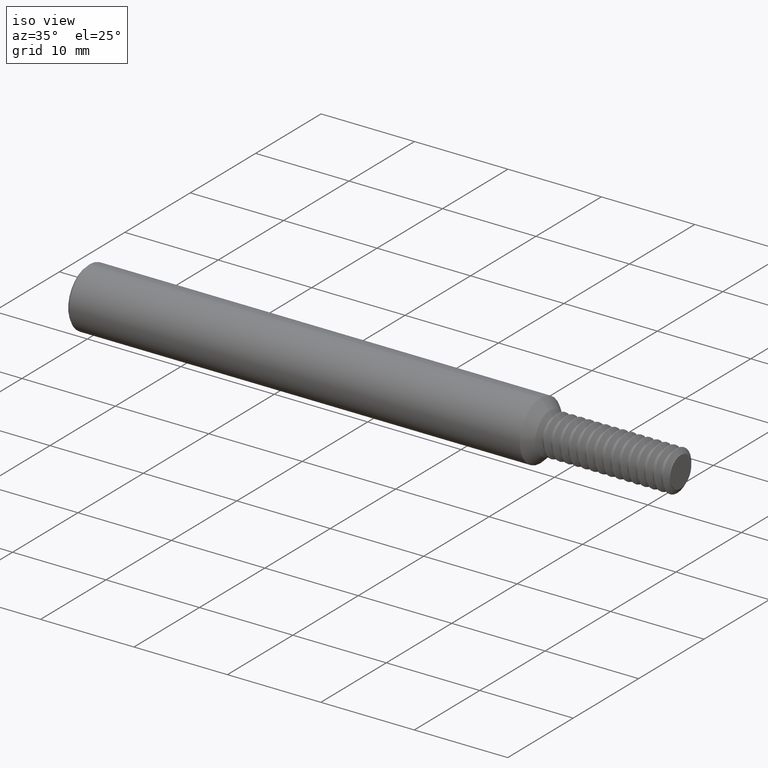
[diagram: clean part render]
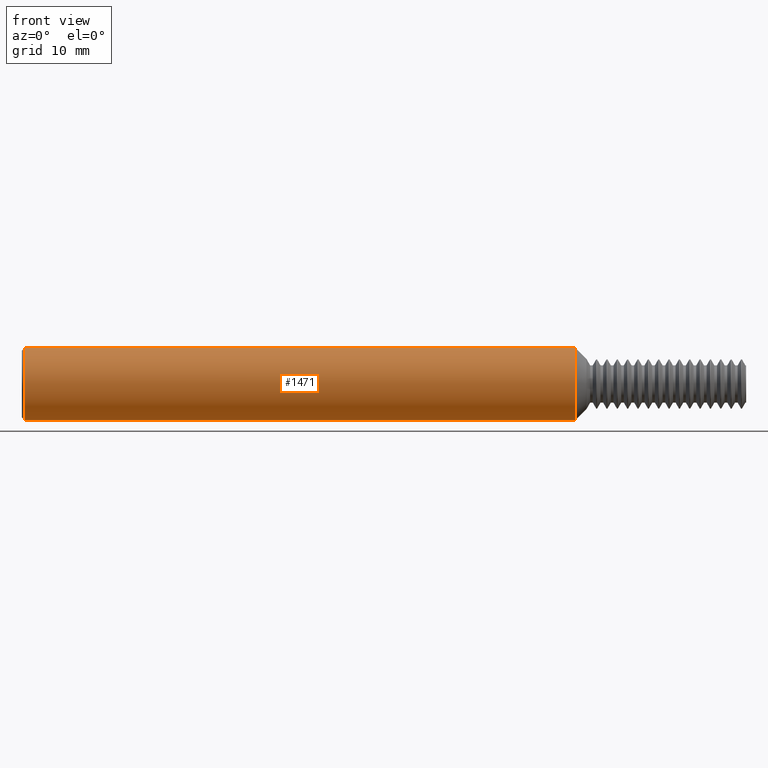
[diagram: tour spotlight — one face highlighted and labeled with its STEP entity id]
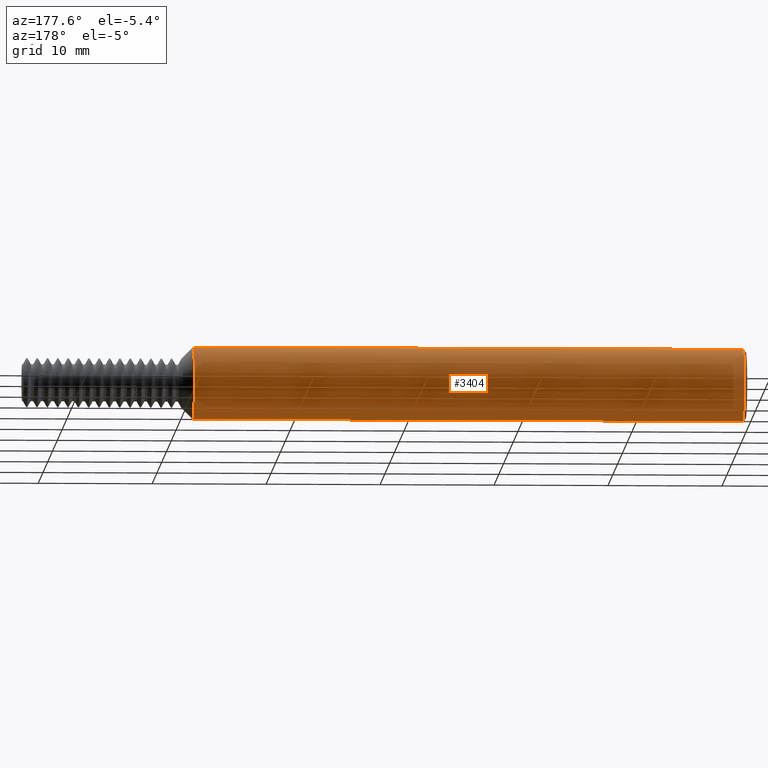
[diagram: tour spotlight — one face highlighted and labeled with its STEP entity id]
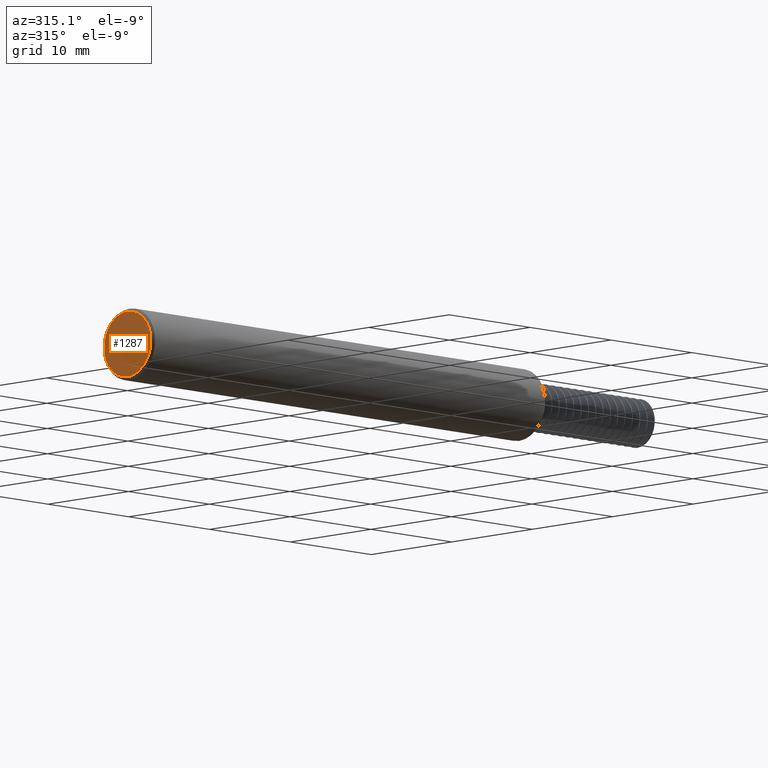
[diagram: tour spotlight — one face highlighted and labeled with its STEP entity id]
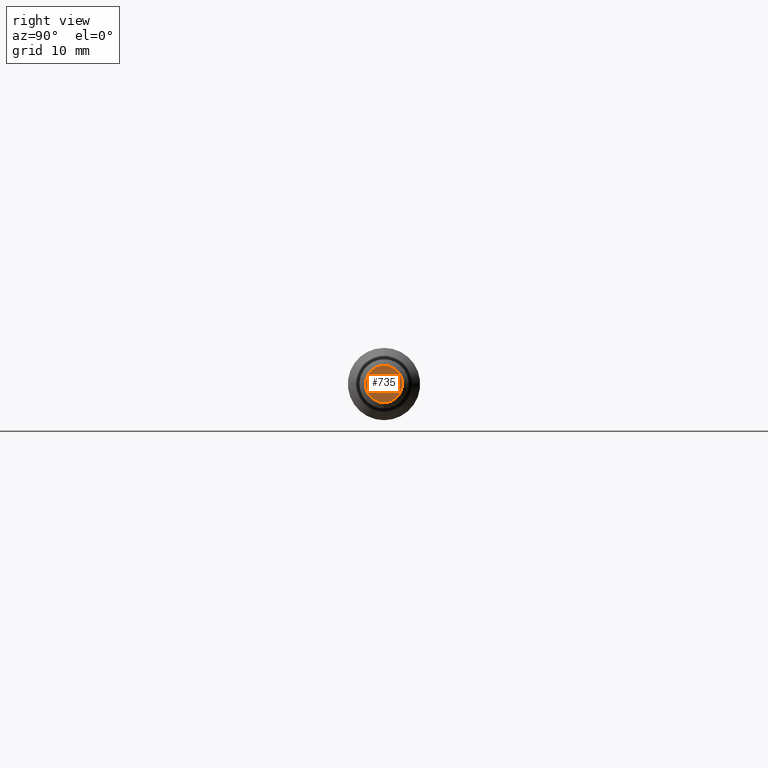
[diagram: tour spotlight — one face highlighted and labeled with its STEP entity id]
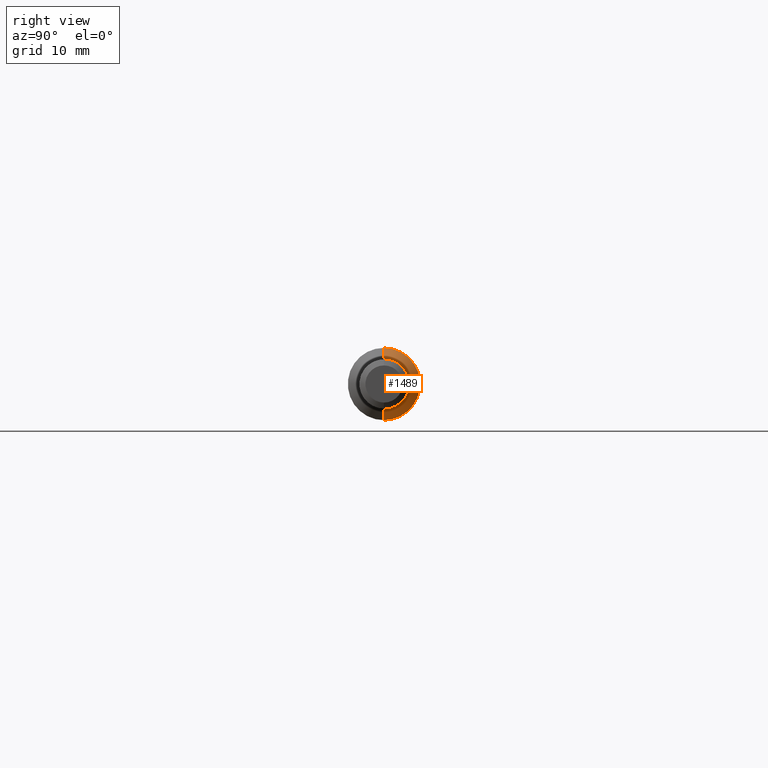
[diagram: tour spotlight — one face highlighted and labeled with its STEP entity id]
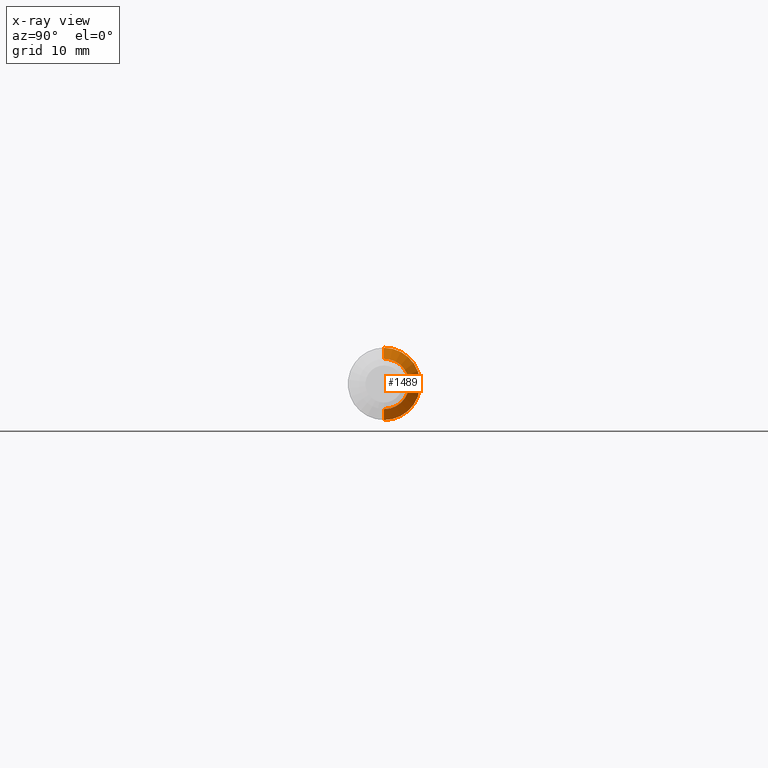
[diagram: x-ray of the same camera — body ghosted, this tour face saturated]
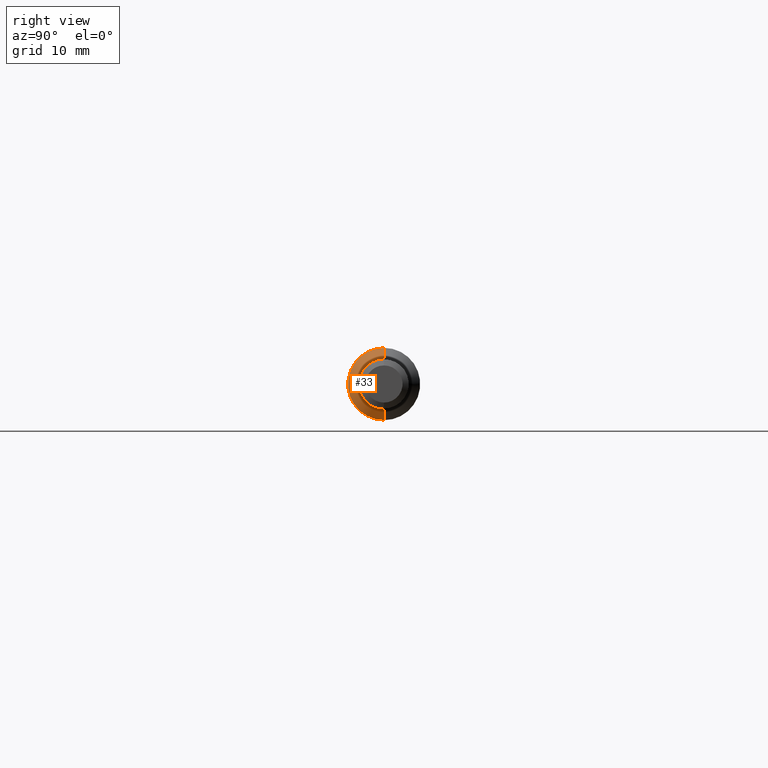
[diagram: tour spotlight — one face highlighted and labeled with its STEP entity id]
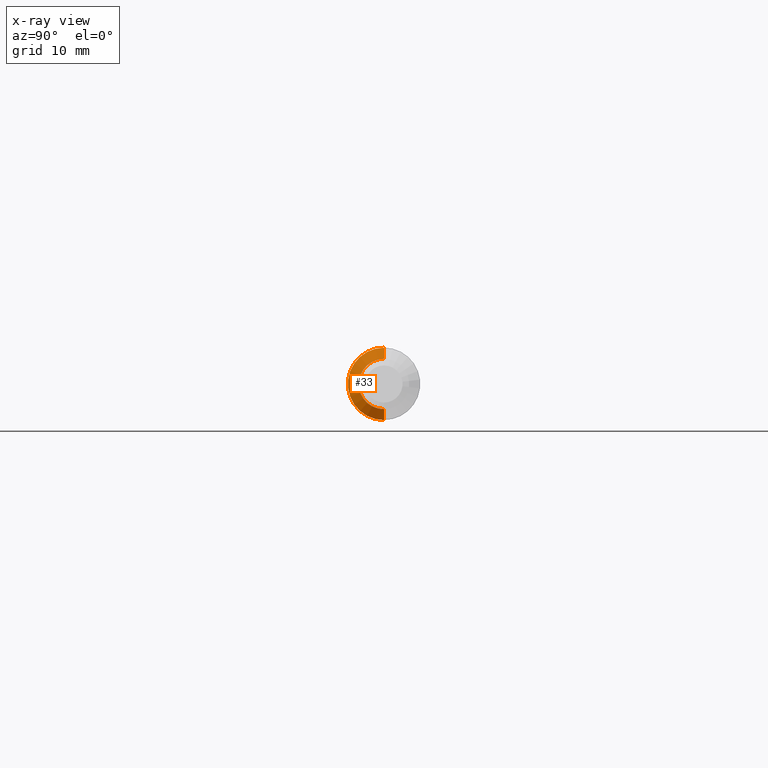
[diagram: x-ray of the same camera — body ghosted, this tour face saturated]
A machine part: a face-by-face anatomy tour. The part has 134 B-rep faces; the first image is the clean iso view, then the 6 largest visible faces are spotlighted one at a time (largest first), each with its STEP entity span.

Face 1 — front view, entity #1471. In plain terms, the highlighted cylindrical surface (edge-blend (fillet) strip) has radius 3.1712 mm, axis along (-1, -0, -0).
Definition (entity closure, byte-faithful):
#145 = VERTEX_POINT ( 'NONE', #1577 ) ;
#215 = LINE ( 'NONE', #2624, #1109 ) ;
#255 = CARTESIAN_POINT ( 'NONE',  ( 1.910150000000000015, 0.000000000000000000, 0.000000000000000000 ) ) ;
#290 = EDGE_CURVE ( 'NONE', #3239, #1060, #2660, .T. ) ;
#355 = FACE_OUTER_BOUND ( 'NONE', #1715, .T. ) ;
#362 = AXIS2_PLACEMENT_3D ( 'NONE', #255, #2616, #2368 ) ;
#426 = DIRECTION ( 'NONE',  ( 1.000000000000000000, 0.000000000000000000, 0.000000000000000000 ) ) ;
#556 = AXIS2_PLACEMENT_3D ( 'NONE', #1144, #1945, #3008 ) ;
#715 = AXIS2_PLACEMENT_3D ( 'NONE', #2021, #426, #3336 ) ;
#861 = EDGE_CURVE ( 'NONE', #2870, #1060, #3094, .T. ) ;
#990 = VECTOR ( 'NONE', #2842, 39.37007874015748143 ) ;
#1000 = DIRECTION ( 'NONE',  ( -1.000000000000000000, -0.000000000000000000, -0.000000000000000000 ) ) ;
#1060 = VERTEX_POINT ( 'NONE', #1727 ) ;
#1109 = VECTOR ( 'NONE', #1000, 39.37007874015748143 ) ;
#1144 = CARTESIAN_POINT ( 'NONE',  ( 0.000000000000000000, 0.000000000000000000, 0.000000000000000000 ) ) ;
#1231 = CARTESIAN_POINT ( 'NONE',  ( 1.910150000000000015, 1.528971528735470422E-17, -0.1248500000000000026 ) ) ;
#1471 = ADVANCED_FACE ( 'NONE', ( #355 ), #2975, .T. ) ;
#1488 = ORIENTED_EDGE ( 'NONE', *, *, #290, .T. ) ;
#1577 = CARTESIAN_POINT ( 'NONE',  ( 1.910150000000000015, 0.000000000000000000, 0.1248500000000000026 ) ) ;
#1715 = EDGE_LOOP ( 'NONE', ( #2725, #2263, #2407, #1488 ) ) ;
#1727 = CARTESIAN_POINT ( 'NONE',  ( 0.009999999999999620304, 0.000000000000000000, -0.1248500000000000026 ) ) ;
#1945 = DIRECTION ( 'NONE',  ( -1.000000000000000000, -0.000000000000000000, -0.000000000000000000 ) ) ;
#1964 = CIRCLE ( 'NONE', #362, 0.1248500000000000026 ) ;
#2021 = CARTESIAN_POINT ( 'NONE',  ( 0.009999999999999620304, 0.000000000000000000, 0.000000000000000000 ) ) ;
#2263 = ORIENTED_EDGE ( 'NONE', *, *, #3376, .T. ) ;
#2368 = DIRECTION ( 'NONE',  ( 0.000000000000000000, 0.000000000000000000, 1.000000000000000000 ) ) ;
#2407 = ORIENTED_EDGE ( 'NONE', *, *, #2992, .T. ) ;
#2565 = CARTESIAN_POINT ( 'NONE',  ( 0.009999999999999620304, 1.528971528735470422E-17, 0.1248500000000000026 ) ) ;
#2616 = DIRECTION ( 'NONE',  ( -1.000000000000000000, -0.000000000000000000, -0.000000000000000000 ) ) ;
#2623 = CARTESIAN_POINT ( 'NONE',  ( 0.000000000000000000, 1.528971528735470422E-17, -0.1248500000000000026 ) ) ;
#2624 = CARTESIAN_POINT ( 'NONE',  ( 0.000000000000000000, 0.000000000000000000, 0.1248500000000000026 ) ) ;
#2660 = CIRCLE ( 'NONE', #715, 0.1248500000000000026 ) ;
#2725 = ORIENTED_EDGE ( 'NONE', *, *, #861, .F. ) ;
#2842 = DIRECTION ( 'NONE',  ( -1.000000000000000000, -0.000000000000000000, -0.000000000000000000 ) ) ;
#2870 = VERTEX_POINT ( 'NONE', #1231 ) ;
#2975 = CYLINDRICAL_SURFACE ( 'NONE', #556, 0.1248500000000000026 ) ;
#2992 = EDGE_CURVE ( 'NONE', #145, #3239, #215, .T. ) ;
#3008 = DIRECTION ( 'NONE',  ( 0.000000000000000000, 0.000000000000000000, 1.000000000000000000 ) ) ;
#3094 = LINE ( 'NONE', #2623, #990 ) ;
#3239 = VERTEX_POINT ( 'NONE', #2565 ) ;
#3336 = DIRECTION ( 'NONE',  ( 0.000000000000000000, 0.000000000000000000, -1.000000000000000000 ) ) ;
#3376 = EDGE_CURVE ( 'NONE', #2870, #145, #1964, .T. ) ;

Face 2 — auxiliary view, entity #3404. In plain terms, the highlighted cylindrical surface (edge-blend (fillet) strip) has radius 3.1712 mm, axis along (-1, -0, -0).
Definition (entity closure, byte-faithful):
#128 = EDGE_CURVE ( 'NONE', #145, #2870, #2876, .T. ) ;
#145 = VERTEX_POINT ( 'NONE', #1577 ) ;
#206 = CARTESIAN_POINT ( 'NONE',  ( 0.000000000000000000, 0.000000000000000000, 0.000000000000000000 ) ) ;
#215 = LINE ( 'NONE', #2624, #1109 ) ;
#227 = CYLINDRICAL_SURFACE ( 'NONE', #467, 0.1248500000000000026 ) ;
#238 = AXIS2_PLACEMENT_3D ( 'NONE', #2648, #3357, #1271 ) ;
#467 = AXIS2_PLACEMENT_3D ( 'NONE', #206, #3188, #1257 ) ;
#515 = FACE_OUTER_BOUND ( 'NONE', #717, .T. ) ;
#577 = ORIENTED_EDGE ( 'NONE', *, *, #128, .T. ) ;
#717 = EDGE_LOOP ( 'NONE', ( #577, #2373, #956, #3314 ) ) ;
#783 = CARTESIAN_POINT ( 'NONE',  ( 1.910150000000000015, 0.000000000000000000, 0.000000000000000000 ) ) ;
#861 = EDGE_CURVE ( 'NONE', #2870, #1060, #3094, .T. ) ;
#956 = ORIENTED_EDGE ( 'NONE', *, *, #2124, .T. ) ;
#990 = VECTOR ( 'NONE', #2842, 39.37007874015748143 ) ;
#1000 = DIRECTION ( 'NONE',  ( -1.000000000000000000, -0.000000000000000000, -0.000000000000000000 ) ) ;
#1060 = VERTEX_POINT ( 'NONE', #1727 ) ;
#1109 = VECTOR ( 'NONE', #1000, 39.37007874015748143 ) ;
#1231 = CARTESIAN_POINT ( 'NONE',  ( 1.910150000000000015, 1.528971528735470422E-17, -0.1248500000000000026 ) ) ;
#1257 = DIRECTION ( 'NONE',  ( 0.000000000000000000, 0.000000000000000000, 1.000000000000000000 ) ) ;
#1271 = DIRECTION ( 'NONE',  ( 0.000000000000000000, 0.000000000000000000, -1.000000000000000000 ) ) ;
#1577 = CARTESIAN_POINT ( 'NONE',  ( 1.910150000000000015, 0.000000000000000000, 0.1248500000000000026 ) ) ;
#1612 = DIRECTION ( 'NONE',  ( 0.000000000000000000, 0.000000000000000000, 1.000000000000000000 ) ) ;
#1727 = CARTESIAN_POINT ( 'NONE',  ( 0.009999999999999620304, 0.000000000000000000, -0.1248500000000000026 ) ) ;
#2124 = EDGE_CURVE ( 'NONE', #1060, #3239, #2896, .T. ) ;
#2373 = ORIENTED_EDGE ( 'NONE', *, *, #861, .T. ) ;
#2565 = CARTESIAN_POINT ( 'NONE',  ( 0.009999999999999620304, 1.528971528735470422E-17, 0.1248500000000000026 ) ) ;
#2623 = CARTESIAN_POINT ( 'NONE',  ( 0.000000000000000000, 1.528971528735470422E-17, -0.1248500000000000026 ) ) ;
#2624 = CARTESIAN_POINT ( 'NONE',  ( 0.000000000000000000, 0.000000000000000000, 0.1248500000000000026 ) ) ;
#2648 = CARTESIAN_POINT ( 'NONE',  ( 0.009999999999999620304, 0.000000000000000000, 0.000000000000000000 ) ) ;
#2842 = DIRECTION ( 'NONE',  ( -1.000000000000000000, -0.000000000000000000, -0.000000000000000000 ) ) ;
#2870 = VERTEX_POINT ( 'NONE', #1231 ) ;
#2876 = CIRCLE ( 'NONE', #3426, 0.1248500000000000026 ) ;
#2896 = CIRCLE ( 'NONE', #238, 0.1248500000000000026 ) ;
#2952 = DIRECTION ( 'NONE',  ( -1.000000000000000000, -0.000000000000000000, -0.000000000000000000 ) ) ;
#2992 = EDGE_CURVE ( 'NONE', #145, #3239, #215, .T. ) ;
#3094 = LINE ( 'NONE', #2623, #990 ) ;
#3188 = DIRECTION ( 'NONE',  ( -1.000000000000000000, -0.000000000000000000, -0.000000000000000000 ) ) ;
#3239 = VERTEX_POINT ( 'NONE', #2565 ) ;
#3314 = ORIENTED_EDGE ( 'NONE', *, *, #2992, .F. ) ;
#3357 = DIRECTION ( 'NONE',  ( 1.000000000000000000, 0.000000000000000000, 0.000000000000000000 ) ) ;
#3404 = ADVANCED_FACE ( 'NONE', ( #515 ), #227, .T. ) ;
#3426 = AXIS2_PLACEMENT_3D ( 'NONE', #783, #2952, #1612 ) ;

Face 3 — auxiliary view, entity #1287. In plain terms, the highlighted planar face has unit normal (1, 0, 0).
Definition (entity closure, byte-faithful):
#105 = CARTESIAN_POINT ( 'NONE',  ( 0.000000000000000000, 1.467739188778106286E-17, 0.1148500000000005489 ) ) ;
#372 = CARTESIAN_POINT ( 'NONE',  ( 0.000000000000000000, 0.000000000000000000, 0.000000000000000000 ) ) ;
#539 = CARTESIAN_POINT ( 'NONE',  ( 0.000000000000000000, 0.000000000000000000, 0.000000000000000000 ) ) ;
#582 = AXIS2_PLACEMENT_3D ( 'NONE', #372, #1510, #1164 ) ;
#963 = ORIENTED_EDGE ( 'NONE', *, *, #3308, .T. ) ;
#970 = DIRECTION ( 'NONE',  ( 1.000000000000000000, 0.000000000000000000, 0.000000000000000000 ) ) ;
#1164 = DIRECTION ( 'NONE',  ( 0.000000000000000000, 0.000000000000000000, -1.000000000000000000 ) ) ;
#1287 = ADVANCED_FACE ( 'NONE', ( #2918 ), #1879, .F. ) ;
#1510 = DIRECTION ( 'NONE',  ( -1.000000000000000000, -0.000000000000000000, -0.000000000000000000 ) ) ;
#1623 = CIRCLE ( 'NONE', #2956, 0.1148500000000005489 ) ;
#1722 = ORIENTED_EDGE ( 'NONE', *, *, #2588, .T. ) ;
#1879 = PLANE ( 'NONE',  #2171 ) ;
#2028 = CARTESIAN_POINT ( 'NONE',  ( 0.000000000000000000, 0.000000000000000000, -0.1148500000000005489 ) ) ;
#2079 = DIRECTION ( 'NONE',  ( 0.000000000000000000, 0.000000000000000000, -1.000000000000000000 ) ) ;
#2171 = AXIS2_PLACEMENT_3D ( 'NONE', #539, #970, #2291 ) ;
#2291 = DIRECTION ( 'NONE',  ( 0.000000000000000000, 0.000000000000000000, -1.000000000000000000 ) ) ;
#2310 = CARTESIAN_POINT ( 'NONE',  ( 0.000000000000000000, 0.000000000000000000, 0.000000000000000000 ) ) ;
#2474 = VERTEX_POINT ( 'NONE', #105 ) ;
#2536 = CIRCLE ( 'NONE', #582, 0.1148500000000005489 ) ;
#2588 = EDGE_CURVE ( 'NONE', #2474, #3245, #1623, .T. ) ;
#2918 = FACE_OUTER_BOUND ( 'NONE', #3141, .T. ) ;
#2956 = AXIS2_PLACEMENT_3D ( 'NONE', #2310, #3118, #2079 ) ;
#3118 = DIRECTION ( 'NONE',  ( -1.000000000000000000, -0.000000000000000000, -0.000000000000000000 ) ) ;
#3141 = EDGE_LOOP ( 'NONE', ( #963, #1722 ) ) ;
#3245 = VERTEX_POINT ( 'NONE', #2028 ) ;
#3308 = EDGE_CURVE ( 'NONE', #3245, #2474, #2536, .T. ) ;

Face 4 — right view, entity #735. In plain terms, the highlighted planar face has unit normal (-1, 0, -0).
Definition (entity closure, byte-faithful):
#158 = AXIS2_PLACEMENT_3D ( 'NONE', #1738, #423, #2554 ) ;
#423 = DIRECTION ( 'NONE',  ( -1.000000000000000000, 0.000000000000000000, -0.000000000000000000 ) ) ;
#692 = ORIENTED_EDGE ( 'NONE', *, *, #3235, .F. ) ;
#735 = ADVANCED_FACE ( 'NONE', ( #1966 ), #1676, .F. ) ;
#852 = DIRECTION ( 'NONE',  ( 0.000000000000000000, 0.000000000000000000, 1.000000000000000000 ) ) ;
#1025 = CIRCLE ( 'NONE', #1465, 0.06412455631191976702 ) ;
#1121 = AXIS2_PLACEMENT_3D ( 'NONE', #1686, #2972, #852 ) ;
#1275 = EDGE_LOOP ( 'NONE', ( #692, #2377 ) ) ;
#1465 = AXIS2_PLACEMENT_3D ( 'NONE', #1928, #3105, #2313 ) ;
#1477 = VERTEX_POINT ( 'NONE', #2497 ) ;
#1676 = PLANE ( 'NONE',  #158 ) ;
#1686 = CARTESIAN_POINT ( 'NONE',  ( 2.500000000000000000, 0.000000000000000000, 0.000000000000000000 ) ) ;
#1738 = CARTESIAN_POINT ( 'NONE',  ( 2.500000000000000000, 0.08699999999999999400, 0.000000000000000000 ) ) ;
#1794 = EDGE_CURVE ( 'NONE', #1477, #1939, #2295, .T. ) ;
#1928 = CARTESIAN_POINT ( 'NONE',  ( 2.500000000000000000, 0.000000000000000000, 0.000000000000000000 ) ) ;
#1939 = VERTEX_POINT ( 'NONE', #3229 ) ;
#1966 = FACE_OUTER_BOUND ( 'NONE', #1275, .T. ) ;
#2295 = CIRCLE ( 'NONE', #1121, 0.06412455631191976702 ) ;
#2313 = DIRECTION ( 'NONE',  ( 0.000000000000000000, 0.000000000000000000, 1.000000000000000000 ) ) ;
#2377 = ORIENTED_EDGE ( 'NONE', *, *, #1794, .F. ) ;
#2497 = CARTESIAN_POINT ( 'NONE',  ( 2.500000000000000000, 7.852993263413675612E-18, -0.06412455631191976702 ) ) ;
#2554 = DIRECTION ( 'NONE',  ( -0.000000000000000000, 0.000000000000000000, 1.000000000000000000 ) ) ;
#2972 = DIRECTION ( 'NONE',  ( -1.000000000000000000, -0.000000000000000000, -0.000000000000000000 ) ) ;
#3105 = DIRECTION ( 'NONE',  ( -1.000000000000000000, -0.000000000000000000, -0.000000000000000000 ) ) ;
#3229 = CARTESIAN_POINT ( 'NONE',  ( 2.500000000000000000, 0.000000000000000000, 0.06412455631191976702 ) ) ;
#3235 = EDGE_CURVE ( 'NONE', #1939, #1477, #1025, .T. ) ;

Face 5 — right view, entity #1489. An x-ray twin of the same camera follows (body ghosted, this face saturated) — the face is partly hidden behind the body. In plain terms, the highlighted conical surface has half-angle 45 deg.
Definition (entity closure, byte-faithful):
#122 = CARTESIAN_POINT ( 'NONE',  ( 1.948000000000000176, 0.000000000000000000, 0.000000000000000000 ) ) ;
#128 = EDGE_CURVE ( 'NONE', #145, #2870, #2876, .T. ) ;
#145 = VERTEX_POINT ( 'NONE', #1577 ) ;
#280 = EDGE_CURVE ( 'NONE', #700, #145, #2273, .T. ) ;
#367 = EDGE_CURVE ( 'NONE', #700, #1648, #1878, .T. ) ;
#438 = FACE_OUTER_BOUND ( 'NONE', #1165, .T. ) ;
#614 = ORIENTED_EDGE ( 'NONE', *, *, #1974, .T. ) ;
#659 = DIRECTION ( 'NONE',  ( -0.7071067811865472397, 8.659560562354936556E-17, -0.7071067811865477948 ) ) ;
#700 = VERTEX_POINT ( 'NONE', #2517 ) ;
#783 = CARTESIAN_POINT ( 'NONE',  ( 1.910150000000000015, 0.000000000000000000, 0.000000000000000000 ) ) ;
#785 = CARTESIAN_POINT ( 'NONE',  ( 1.948000000000000176, 1.297207121996833909E-17, -0.08699999999999999400 ) ) ;
#916 = CARTESIAN_POINT ( 'NONE',  ( 1.948000000000000176, 0.000000000000000000, 0.08699999999999999400 ) ) ;
#941 = CARTESIAN_POINT ( 'NONE',  ( 1.948000000000000176, 0.000000000000000000, 0.000000000000000000 ) ) ;
#1112 = CONICAL_SURFACE ( 'NONE', #3053, 0.08699999999999999400, 0.7853981633974487231 ) ;
#1154 = AXIS2_PLACEMENT_3D ( 'NONE', #122, #1170, #2242 ) ;
#1165 = EDGE_LOOP ( 'NONE', ( #2989, #614, #2529, #1844 ) ) ;
#1170 = DIRECTION ( 'NONE',  ( -1.000000000000000000, -0.000000000000000000, -0.000000000000000000 ) ) ;
#1231 = CARTESIAN_POINT ( 'NONE',  ( 1.910150000000000015, 1.528971528735470422E-17, -0.1248500000000000026 ) ) ;
#1462 = DIRECTION ( 'NONE',  ( 0.000000000000000000, 0.000000000000000000, 1.000000000000000000 ) ) ;
#1489 = ADVANCED_FACE ( 'NONE', ( #438 ), #1112, .T. ) ;
#1577 = CARTESIAN_POINT ( 'NONE',  ( 1.910150000000000015, 0.000000000000000000, 0.1248500000000000026 ) ) ;
#1612 = DIRECTION ( 'NONE',  ( 0.000000000000000000, 0.000000000000000000, 1.000000000000000000 ) ) ;
#1648 = VERTEX_POINT ( 'NONE', #785 ) ;
#1733 = LINE ( 'NONE', #2279, #1790 ) ;
#1759 = DIRECTION ( 'NONE',  ( -0.7071067811865472397, 0.000000000000000000, 0.7071067811865477948 ) ) ;
#1790 = VECTOR ( 'NONE', #659, 39.37007874015748143 ) ;
#1844 = ORIENTED_EDGE ( 'NONE', *, *, #280, .F. ) ;
#1878 = CIRCLE ( 'NONE', #1154, 0.08699999999999999400 ) ;
#1974 = EDGE_CURVE ( 'NONE', #1648, #2870, #1733, .T. ) ;
#2158 = VECTOR ( 'NONE', #1759, 39.37007874015748143 ) ;
#2242 = DIRECTION ( 'NONE',  ( 0.000000000000000000, 0.000000000000000000, 1.000000000000000000 ) ) ;
#2273 = LINE ( 'NONE', #916, #2158 ) ;
#2279 = CARTESIAN_POINT ( 'NONE',  ( 1.948000000000000176, 1.065442715258197088E-17, -0.08699999999999999400 ) ) ;
#2300 = DIRECTION ( 'NONE',  ( -1.000000000000000000, -0.000000000000000000, -0.000000000000000000 ) ) ;
#2517 = CARTESIAN_POINT ( 'NONE',  ( 1.948000000000000176, 0.000000000000000000, 0.08699999999999999400 ) ) ;
#2529 = ORIENTED_EDGE ( 'NONE', *, *, #128, .F. ) ;
#2870 = VERTEX_POINT ( 'NONE', #1231 ) ;
#2876 = CIRCLE ( 'NONE', #3426, 0.1248500000000000026 ) ;
#2952 = DIRECTION ( 'NONE',  ( -1.000000000000000000, -0.000000000000000000, -0.000000000000000000 ) ) ;
#2989 = ORIENTED_EDGE ( 'NONE', *, *, #367, .T. ) ;
#3053 = AXIS2_PLACEMENT_3D ( 'NONE', #941, #2300, #1462 ) ;
#3426 = AXIS2_PLACEMENT_3D ( 'NONE', #783, #2952, #1612 ) ;

Face 6 — right view, entity #33. An x-ray twin of the same camera follows (body ghosted, this face saturated) — the face is partly hidden behind the body. In plain terms, the highlighted conical surface has half-angle 45 deg.
Definition (entity closure, byte-faithful):
#33 = ADVANCED_FACE ( 'NONE', ( #3074 ), #107, .T. ) ;
#107 = CONICAL_SURFACE ( 'NONE', #160, 0.08699999999999999400, 0.7853981633974487231 ) ;
#145 = VERTEX_POINT ( 'NONE', #1577 ) ;
#160 = AXIS2_PLACEMENT_3D ( 'NONE', #695, #1751, #2566 ) ;
#180 = EDGE_LOOP ( 'NONE', ( #1421, #2642, #1908, #1905 ) ) ;
#255 = CARTESIAN_POINT ( 'NONE',  ( 1.910150000000000015, 0.000000000000000000, 0.000000000000000000 ) ) ;
#280 = EDGE_CURVE ( 'NONE', #700, #145, #2273, .T. ) ;
#302 = DIRECTION ( 'NONE',  ( -1.000000000000000000, -0.000000000000000000, -0.000000000000000000 ) ) ;
#362 = AXIS2_PLACEMENT_3D ( 'NONE', #255, #2616, #2368 ) ;
#593 = CARTESIAN_POINT ( 'NONE',  ( 1.948000000000000176, 0.000000000000000000, 0.000000000000000000 ) ) ;
#659 = DIRECTION ( 'NONE',  ( -0.7071067811865472397, 8.659560562354936556E-17, -0.7071067811865477948 ) ) ;
#695 = CARTESIAN_POINT ( 'NONE',  ( 1.948000000000000176, 0.000000000000000000, 0.000000000000000000 ) ) ;
#700 = VERTEX_POINT ( 'NONE', #2517 ) ;
#784 = CIRCLE ( 'NONE', #1322, 0.08699999999999999400 ) ;
#785 = CARTESIAN_POINT ( 'NONE',  ( 1.948000000000000176, 1.297207121996833909E-17, -0.08699999999999999400 ) ) ;
#916 = CARTESIAN_POINT ( 'NONE',  ( 1.948000000000000176, 0.000000000000000000, 0.08699999999999999400 ) ) ;
#1231 = CARTESIAN_POINT ( 'NONE',  ( 1.910150000000000015, 1.528971528735470422E-17, -0.1248500000000000026 ) ) ;
#1322 = AXIS2_PLACEMENT_3D ( 'NONE', #593, #302, #1962 ) ;
#1358 = EDGE_CURVE ( 'NONE', #1648, #700, #784, .T. ) ;
#1421 = ORIENTED_EDGE ( 'NONE', *, *, #1974, .F. ) ;
#1577 = CARTESIAN_POINT ( 'NONE',  ( 1.910150000000000015, 0.000000000000000000, 0.1248500000000000026 ) ) ;
#1648 = VERTEX_POINT ( 'NONE', #785 ) ;
#1733 = LINE ( 'NONE', #2279, #1790 ) ;
#1751 = DIRECTION ( 'NONE',  ( -1.000000000000000000, -0.000000000000000000, -0.000000000000000000 ) ) ;
#1759 = DIRECTION ( 'NONE',  ( -0.7071067811865472397, 0.000000000000000000, 0.7071067811865477948 ) ) ;
#1790 = VECTOR ( 'NONE', #659, 39.37007874015748143 ) ;
#1905 = ORIENTED_EDGE ( 'NONE', *, *, #3376, .F. ) ;
#1908 = ORIENTED_EDGE ( 'NONE', *, *, #280, .T. ) ;
#1962 = DIRECTION ( 'NONE',  ( 0.000000000000000000, 0.000000000000000000, 1.000000000000000000 ) ) ;
#1964 = CIRCLE ( 'NONE', #362, 0.1248500000000000026 ) ;
#1974 = EDGE_CURVE ( 'NONE', #1648, #2870, #1733, .T. ) ;
#2158 = VECTOR ( 'NONE', #1759, 39.37007874015748143 ) ;
#2273 = LINE ( 'NONE', #916, #2158 ) ;
#2279 = CARTESIAN_POINT ( 'NONE',  ( 1.948000000000000176, 1.065442715258197088E-17, -0.08699999999999999400 ) ) ;
#2368 = DIRECTION ( 'NONE',  ( 0.000000000000000000, 0.000000000000000000, 1.000000000000000000 ) ) ;
#2517 = CARTESIAN_POINT ( 'NONE',  ( 1.948000000000000176, 0.000000000000000000, 0.08699999999999999400 ) ) ;
#2566 = DIRECTION ( 'NONE',  ( 0.000000000000000000, 0.000000000000000000, 1.000000000000000000 ) ) ;
#2616 = DIRECTION ( 'NONE',  ( -1.000000000000000000, -0.000000000000000000, -0.000000000000000000 ) ) ;
#2642 = ORIENTED_EDGE ( 'NONE', *, *, #1358, .T. ) ;
#2870 = VERTEX_POINT ( 'NONE', #1231 ) ;
#3074 = FACE_OUTER_BOUND ( 'NONE', #180, .T. ) ;
#3376 = EDGE_CURVE ( 'NONE', #2870, #145, #1964, .T. ) ;